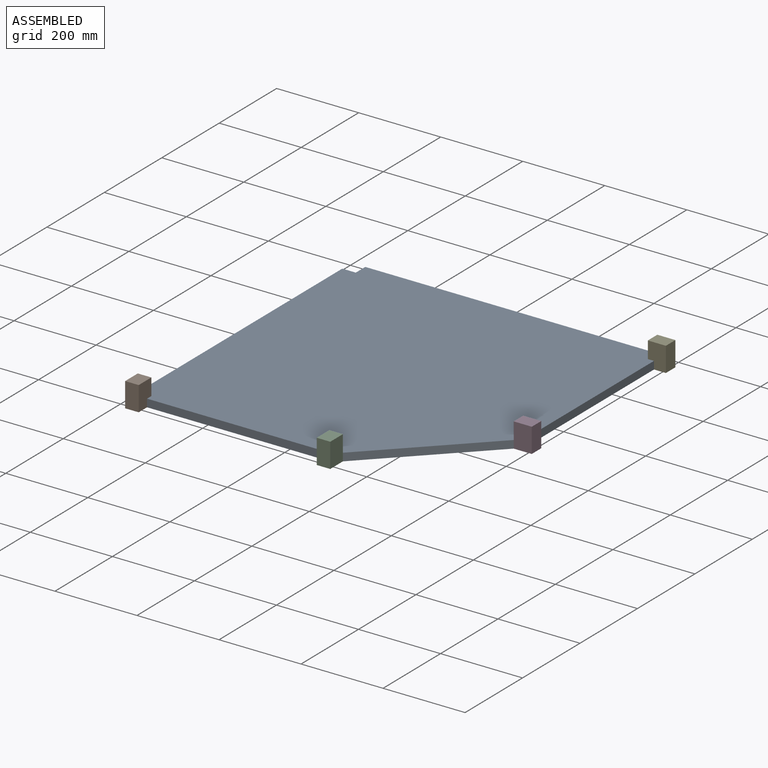
[diagram: assembled view]
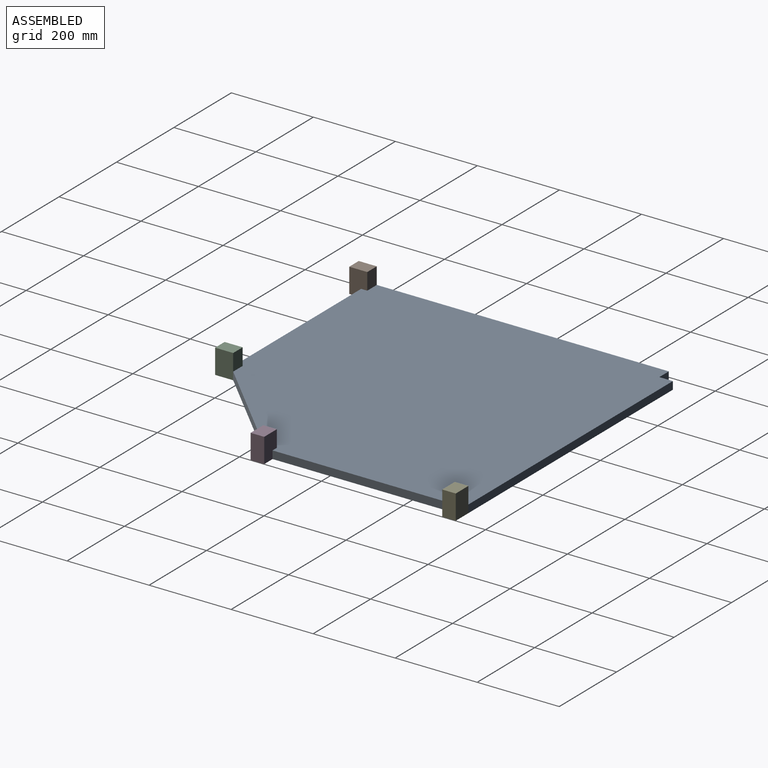
[diagram: assembled view, second angle]
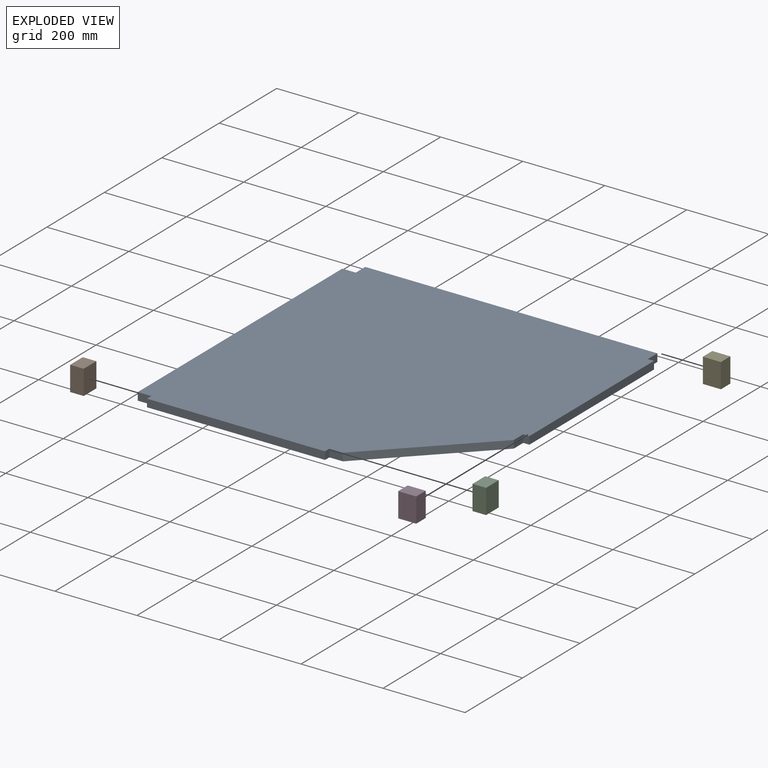
[diagram: exploded view]
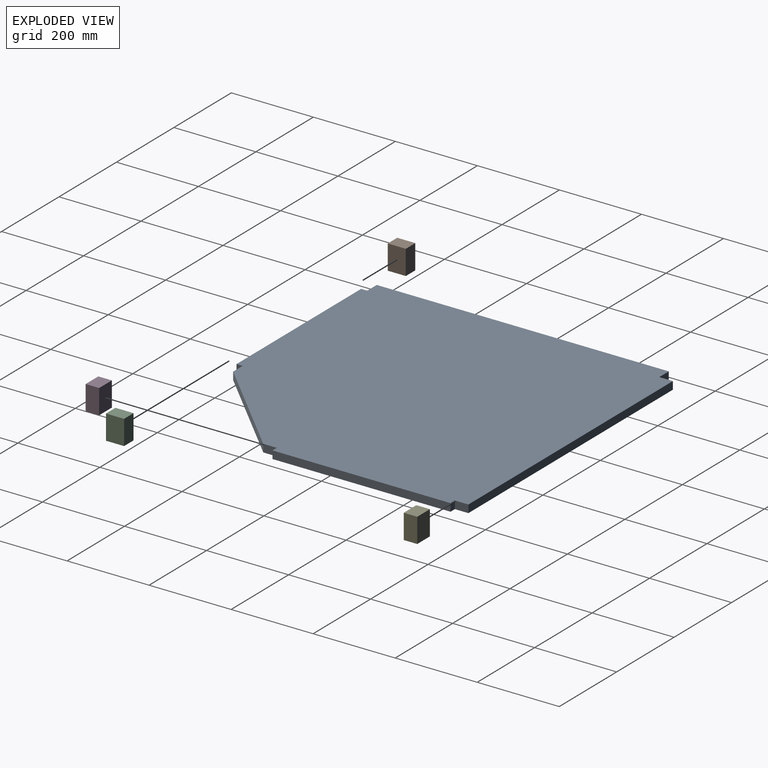
[diagram: exploded view, second angle]
ASSEMBLY  parts=5 mates=12
PART A: 17 faces, bbox 760x760x19 mm
  f0: plane 33x19mm, normal (0,1,0), area 627mm2, adj f1,f14,f15,f16
  f1: plane 712x19mm, normal (-1,0,0), area 13528mm2, adj f0,f2,f15,f16
  f2: plane 33x19mm, normal (0,-1,0), area 627mm2, adj f1,f3,f15,f16
  f3: plane 19x15mm, normal (-1,0,0), area 285mm2, adj f2,f4,f15,f16
  f4: plane 434x19mm, normal (0,-1,0), area 8246mm2, adj f3,f5,f15,f16
  f5: plane 19x15mm, normal (1,0,0), area 285mm2, adj f4,f6,f15,f16
  f6: plane 33x19mm, normal (0,-1,0), area 627mm2, adj f5,f7,f15,f16
  f7: plane 245x245mm, normal (0.71,-0.71,0), area 6583.2mm2, adj f6,f8,f15,f16
  f8: plane 33x19mm, normal (1,0,0), area 627mm2, adj f7,f9,f15,f16
  f9: plane 19x15mm, normal (0,-1,0), area 285mm2, adj f8,f10,f15,f16
  f10: plane 434x19mm, normal (1,0,0), area 8246mm2, adj f9,f11,f15,f16
  f11: plane 19x15mm, normal (0,1,0), area 285mm2, adj f10,f12,f15,f16
  f12: plane 33x19mm, normal (1,0,0), area 627mm2, adj f11,f13,f15,f16
  f13: plane 712x19mm, normal (0,1,0), area 13528mm2, adj f12,f14,f15,f16
  f14: plane 33x19mm, normal (-1,0,0), area 627mm2, adj f0,f13,f15,f16
  f15: plane 760x760mm, normal (0,0,1), area 536943.5mm2, adj f0,f1,f2,f3,f4,f5,f6,f7
  f16: plane 760x760mm, normal (0,0,-1), area 536943.5mm2, adj f0,f1,f2,f3,f4,f5,f6,f7
PART B: 6 faces, bbox 44x33x60 mm
  f0: plane 60x44mm, normal (0,1,0), area 2640mm2, adj f1,f3,f4,f5
  f1: plane 60x33mm, normal (-1,0,0), area 1980mm2, adj f0,f2,f4,f5
  f2: plane 60x44mm, normal (0,-1,0), area 2640mm2, adj f1,f3,f4,f5
  f3: plane 60x33mm, normal (1,0,0), area 1980mm2, adj f0,f2,f4,f5
  f4: plane 44x33mm, normal (0,0,1), area 1452mm2, adj f0,f1,f2,f3
  f5: plane 44x33mm, normal (0,0,-1), area 1452mm2, adj f0,f1,f2,f3
PART C: same geometry as B
PART D: same geometry as B
PART E: same geometry as B
PLACE A t=(19.91,-32.15,84.46)mm
PLACE B rot(axis=(0,0,-1),90deg) t=(-343.59,-419.15,84.46)mm
PLACE C rot(axis=(0,0,-1),90deg) t=(123.41,-419.15,84.46)mm
PLACE D t=(406.91,-135.65,84.46)mm
PLACE E t=(406.91,331.35,84.46)mm
MATE planar E.f1 <-> A.f12  axis (-1,0,0) through (384.91,331.35,114.46)mm
MATE planar B.f0 <-> A.f3  axis (1,0,0) through (-327.09,-419.15,114.46)mm
MATE planar C.f2 <-> A.f5  axis (-1,0,0) through (106.91,-419.15,114.46)mm
MATE planar A.f16 <-> E.f5  axis (0,0,-1) through (0,-12.24,84.46)mm
MATE planar D.f0 <-> A.f9  axis (0,1,0) through (406.91,-119.15,114.46)mm
MATE planar B.f5 <-> A.f16  axis (0,0,-1) through (-343.59,-419.15,84.46)mm
MATE planar D.f5 <-> A.f16  axis (0,0,-1) through (406.91,-135.65,84.46)mm
MATE planar C.f1 <-> A.f6  axis (0,1,0) through (123.41,-397.15,114.46)mm
MATE planar B.f1 <-> A.f2  axis (0,1,0) through (-343.59,-397.15,114.46)mm
MATE planar E.f2 <-> A.f11  axis (0,-1,0) through (406.91,314.85,114.46)mm
MATE planar C.f5 <-> A.f16  axis (0,0,-1) through (123.41,-419.15,84.46)mm
MATE planar D.f1 <-> A.f8  axis (-1,0,0) through (384.91,-135.65,114.46)mm
